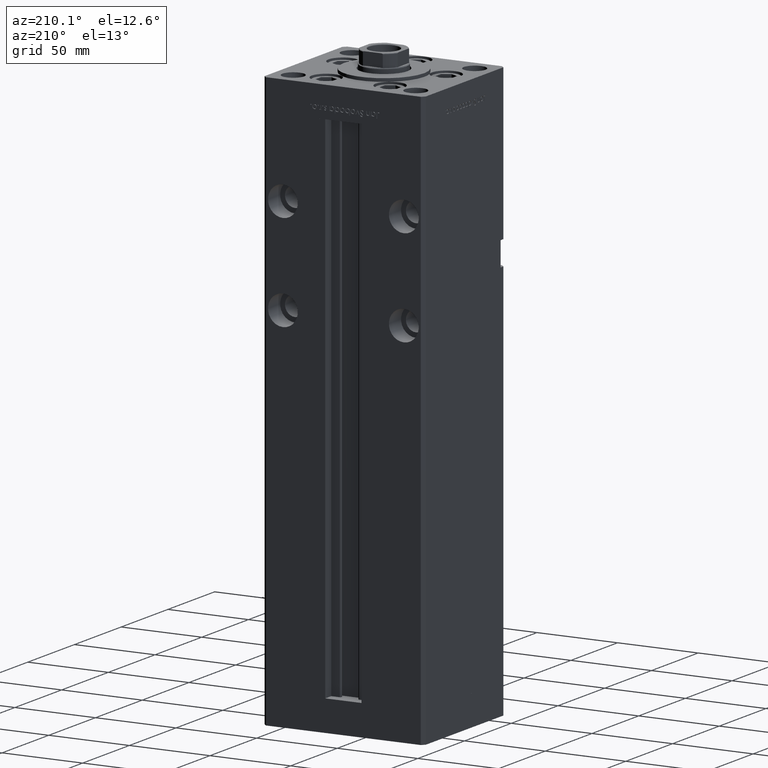
[diagram: clean part render]
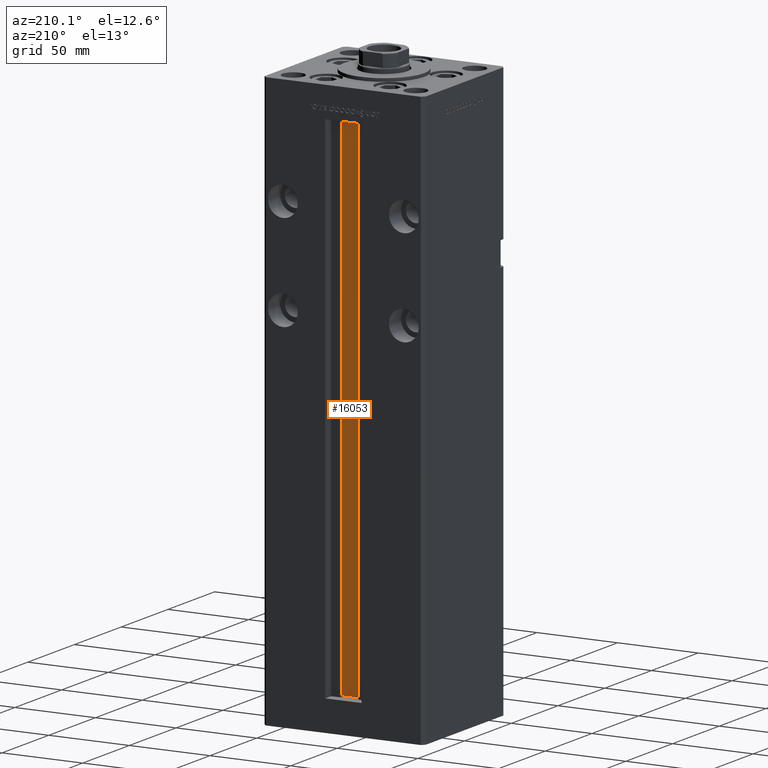
[diagram: same view with one face highlighted and labeled with its STEP entity id]
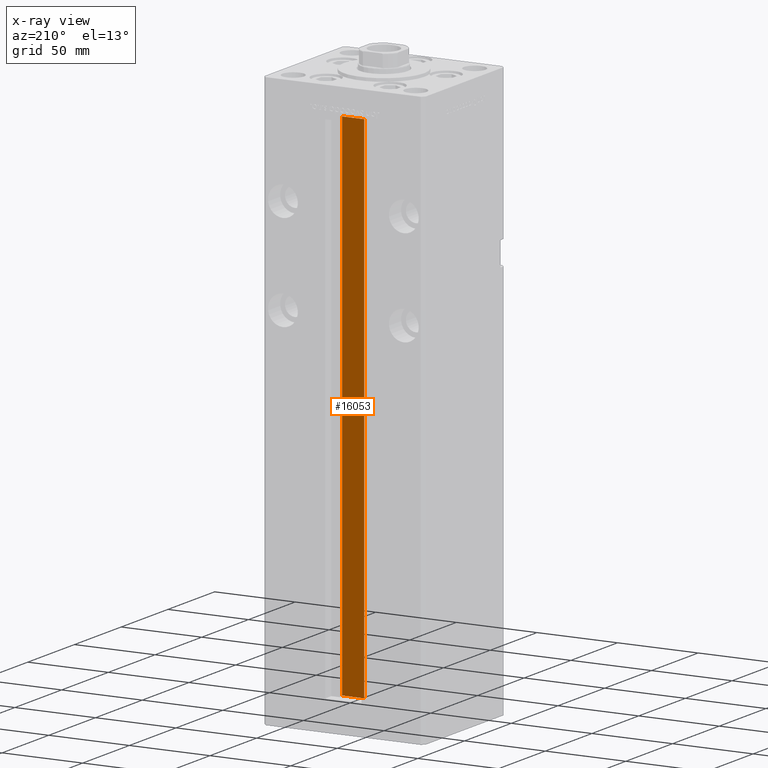
[diagram: x-ray of the same camera — body ghosted, the highlighted face saturated]
A machine part, auxiliary view. The second image highlights one B-rep face of the part: STEP entity #16053.
The next image is the same camera in x-ray: the body ghosted, the highlighted face saturated — about 0% of this face is hidden behind the body in this view.
In plain terms, the highlighted planar face has unit normal (0, -1, 0).
Its self-contained STEP definition (entity closure, byte-faithful):
#329 = CARTESIAN_POINT ( 'NONE',  ( -6.876153656360465050, 32.99999999999986500, 0.000000000000000000 ) ) ;
#1756 = DIRECTION ( 'NONE',  ( 1.000000000000000000, -0.000000000000000000, -0.000000000000000000 ) ) ;
#3238 = ORIENTED_EDGE ( 'NONE', *, *, #14801, .F. ) ;
#3753 = AXIS2_PLACEMENT_3D ( 'NONE', #27203, #23179, #43329 ) ;
#5445 = VECTOR ( 'NONE', #1756, 1000.000000000000000 ) ;
#5999 = VERTEX_POINT ( 'NONE', #329 ) ;
#8045 = CARTESIAN_POINT ( 'NONE',  ( -6.876153656360465050, 32.99999999999986500, 0.000000000000000000 ) ) ;
#8390 = CARTESIAN_POINT ( 'NONE',  ( 6.876153656360465050, 32.99999999999986500, 318.5000000000000000 ) ) ;
#9032 = LINE ( 'NONE', #38570, #5445 ) ;
#10192 = EDGE_CURVE ( 'NONE', #12642, #38200, #23074, .T. ) ;
#11065 = FACE_OUTER_BOUND ( 'NONE', #14892, .T. ) ;
#12642 = VERTEX_POINT ( 'NONE', #43449 ) ;
#13260 = CARTESIAN_POINT ( 'NONE',  ( 0.000000000000000000, 32.99999999999986500, 318.5000000000000000 ) ) ;
#13995 = VECTOR ( 'NONE', #48049, 1000.000000000000000 ) ;
#14801 = EDGE_CURVE ( 'NONE', #5999, #12642, #9032, .T. ) ;
#14892 = EDGE_LOOP ( 'NONE', ( #38529, #3238, #52299, #52050 ) ) ;
#16053 = ADVANCED_FACE ( 'NONE', ( #11065 ), #31781, .F. ) ;
#21069 = DIRECTION ( 'NONE',  ( -1.000000000000000000, 0.000000000000000000, 0.000000000000000000 ) ) ;
#23074 = LINE ( 'NONE', #31150, #13995 ) ;
#23179 = DIRECTION ( 'NONE',  ( 0.000000000000000000, -1.000000000000000000, -0.000000000000000000 ) ) ;
#27203 = CARTESIAN_POINT ( 'NONE',  ( 6.876153656360465050, 32.99999999999986500, 0.000000000000000000 ) ) ;
#28234 = VERTEX_POINT ( 'NONE', #40543 ) ;
#30264 = DIRECTION ( 'NONE',  ( -0.000000000000000000, -0.000000000000000000, 1.000000000000000000 ) ) ;
#31150 = CARTESIAN_POINT ( 'NONE',  ( 6.876153656360465050, 32.99999999999986500, 0.000000000000000000 ) ) ;
#31781 = PLANE ( 'NONE',  #3753 ) ;
#31881 = EDGE_CURVE ( 'NONE', #38200, #28234, #37450, .T. ) ;
#32226 = EDGE_CURVE ( 'NONE', #5999, #28234, #44864, .T. ) ;
#37450 = LINE ( 'NONE', #13260, #42675 ) ;
#38200 = VERTEX_POINT ( 'NONE', #8390 ) ;
#38529 = ORIENTED_EDGE ( 'NONE', *, *, #10192, .F. ) ;
#38570 = CARTESIAN_POINT ( 'NONE',  ( 6.876153656360465050, 32.99999999999986500, 0.000000000000000000 ) ) ;
#40543 = CARTESIAN_POINT ( 'NONE',  ( -6.876153656360465050, 32.99999999999986500, 318.5000000000000000 ) ) ;
#41838 = VECTOR ( 'NONE', #30264, 1000.000000000000000 ) ;
#42675 = VECTOR ( 'NONE', #21069, 1000.000000000000000 ) ;
#43329 = DIRECTION ( 'NONE',  ( 0.000000000000000000, 0.000000000000000000, -1.000000000000000000 ) ) ;
#43449 = CARTESIAN_POINT ( 'NONE',  ( 6.876153656360465050, 32.99999999999986500, 0.000000000000000000 ) ) ;
#44864 = LINE ( 'NONE', #8045, #41838 ) ;
#48049 = DIRECTION ( 'NONE',  ( -0.000000000000000000, -0.000000000000000000, 1.000000000000000000 ) ) ;
#52050 = ORIENTED_EDGE ( 'NONE', *, *, #31881, .F. ) ;
#52299 = ORIENTED_EDGE ( 'NONE', *, *, #32226, .T. ) ;